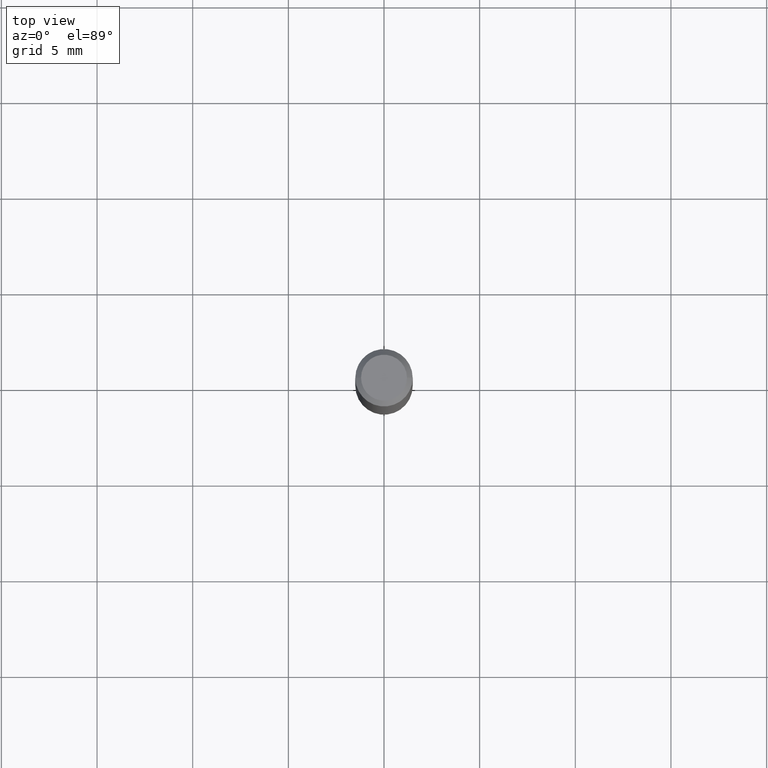
[diagram: clean part render]
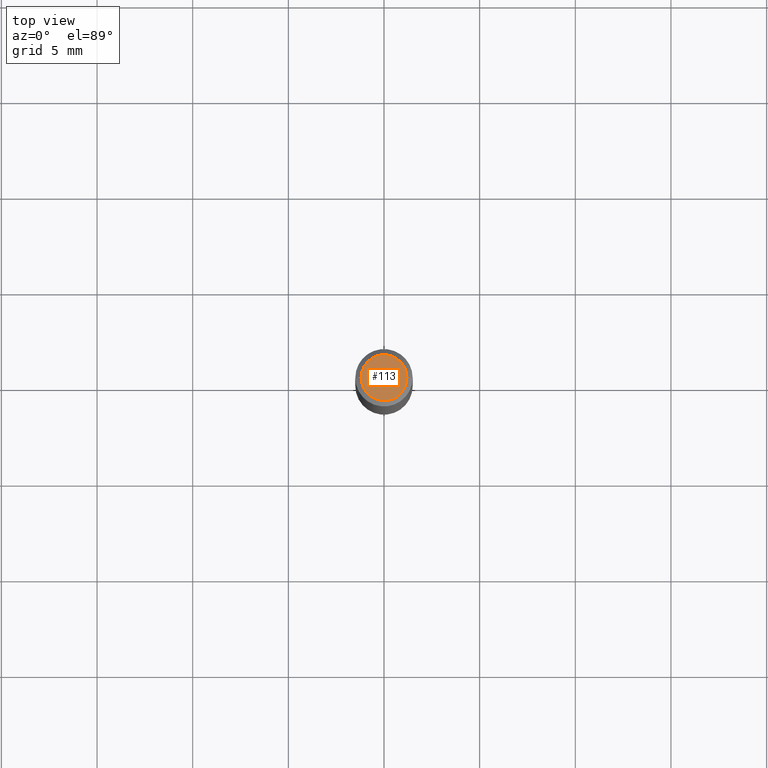
[diagram: same view with one face highlighted and labeled with its STEP entity id]
A machine part, top view. The second image highlights one B-rep face of the part: STEP entity #113.
In plain terms, the highlighted planar face has unit normal (0, -0, -1).
Its self-contained STEP definition (entity closure, byte-faithful):
#9 = EDGE_CURVE ( 'NONE', #324, #53, #406, .T. ) ;
#20 = DIRECTION ( 'NONE',  ( -1.000000000000000000, 6.982962677686265922E-15, -4.876176775795935793E-29 ) ) ;
#40 = AXIS2_PLACEMENT_3D ( 'NONE', #487, #144, #66 ) ;
#50 = ORIENTED_EDGE ( 'NONE', *, *, #9, .T. ) ;
#53 = VERTEX_POINT ( 'NONE', #227 ) ;
#54 = FACE_OUTER_BOUND ( 'NONE', #153, .T. ) ;
#66 = DIRECTION ( 'NONE',  ( 1.000000000000000000, -6.982962677686266711E-15, 4.876185090822587894E-29 ) ) ;
#84 = DIRECTION ( 'NONE',  ( 2.438088387897960049E-29, -3.491481338843145188E-15, -1.000000000000000000 ) ) ;
#113 = ADVANCED_FACE ( 'NONE', ( #54 ), #165, .F. ) ;
#144 = DIRECTION ( 'NONE',  ( -2.445468806185136597E-29, 3.491481338843145583E-15, 1.000000000000000000 ) ) ;
#153 = EDGE_LOOP ( 'NONE', ( #399, #50 ) ) ;
#165 = PLANE ( 'NONE',  #485 ) ;
#227 = CARTESIAN_POINT ( 'NONE',  ( -0.04724000000000000421, 3.504923541997677355E-16, -3.380025165670481712E-19 ) ) ;
#251 = AXIS2_PLACEMENT_3D ( 'NONE', #286, #325, #474 ) ;
#286 = CARTESIAN_POINT ( 'NONE',  ( 8.265746106709734507E-48, -1.180129479067563789E-33, -3.380025165646692144E-19 ) ) ;
#297 = CARTESIAN_POINT ( 'NONE',  ( 0.04724000000000000421, -3.852183633974369345E-16, -3.380025165621689721E-19 ) ) ;
#316 = EDGE_CURVE ( 'NONE', #53, #324, #431, .T. ) ;
#324 = VERTEX_POINT ( 'NONE', #297 ) ;
#325 = DIRECTION ( 'NONE',  ( -2.445468806185136597E-29, 3.491481338843145583E-15, 1.000000000000000000 ) ) ;
#358 = CARTESIAN_POINT ( 'NONE',  ( 4.132873053354867254E-48, -5.900647395337818946E-34, -1.690012582823346072E-19 ) ) ;
#399 = ORIENTED_EDGE ( 'NONE', *, *, #316, .T. ) ;
#406 = CIRCLE ( 'NONE', #251, 0.04724000000000000421 ) ;
#431 = CIRCLE ( 'NONE', #40, 0.04724000000000000421 ) ;
#474 = DIRECTION ( 'NONE',  ( 1.000000000000000000, -6.982962677686266711E-15, 4.876185090822587894E-29 ) ) ;
#485 = AXIS2_PLACEMENT_3D ( 'NONE', #358, #84, #20 ) ;
#487 = CARTESIAN_POINT ( 'NONE',  ( 8.265746106709734507E-48, -1.180129479067563789E-33, -3.380025165646692144E-19 ) ) ;